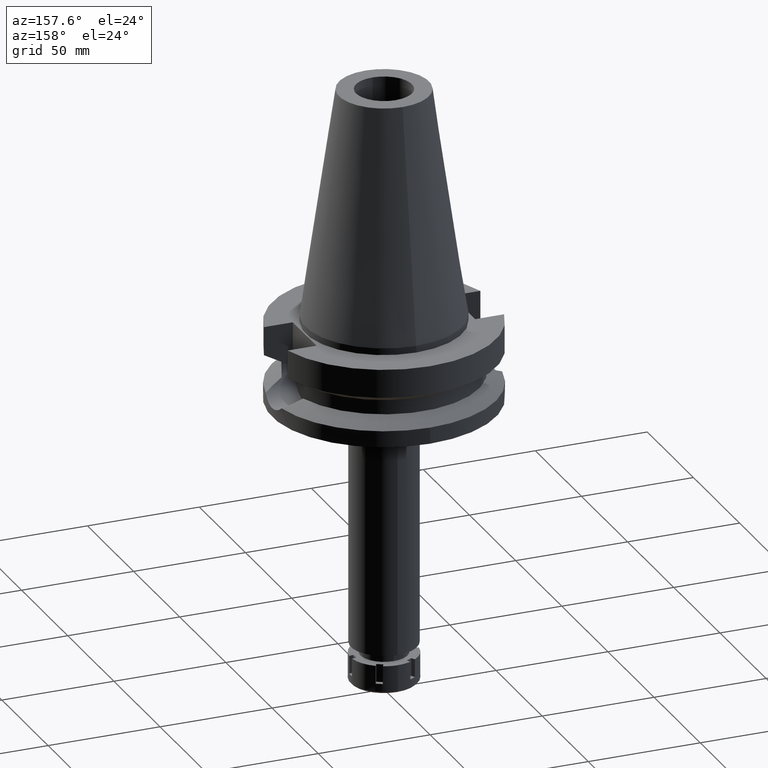
[diagram: clean part render]
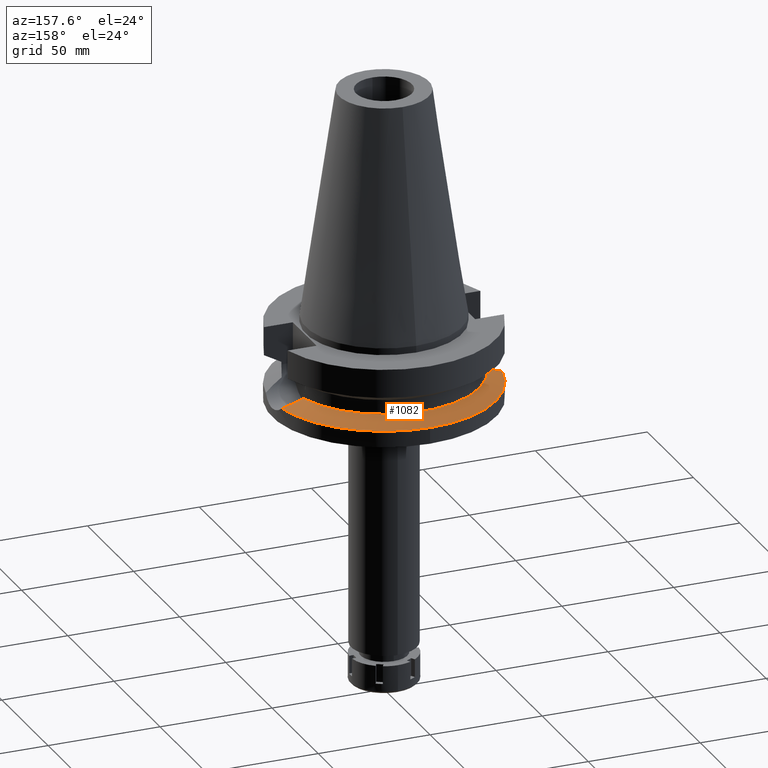
[diagram: same view with one face highlighted and labeled with its STEP entity id]
A machine part, auxiliary view. The second image highlights one B-rep face of the part: STEP entity #1082.
In plain terms, the highlighted conical surface has half-angle 60 deg.
Its self-contained STEP definition (entity closure, byte-faithful):
#51 = CARTESIAN_POINT ( 'NONE',  ( -46.93593280644003585, 9.770477689718383374, -29.54494220286485984 ) ) ;
#103 = CARTESIAN_POINT ( 'NONE',  ( 45.58843685150138469, 10.28591279077460108, -28.85212307119248365 ) ) ;
#117 = ORIENTED_EDGE ( 'NONE', *, *, #970, .F. ) ;
#174 = CARTESIAN_POINT ( 'NONE',  ( -41.73355036729758893, 11.52031717551258438, -26.86454506609836912 ) ) ;
#207 = CARTESIAN_POINT ( 'NONE',  ( -44.92494464716973823, 10.53396995766594912, -28.51065719593379200 ) ) ;
#294 = AXIS2_PLACEMENT_3D ( 'NONE', #701, #1258, #638 ) ;
#351 = AXIS2_PLACEMENT_3D ( 'NONE', #597, #1746, #2619 ) ;
#424 = B_SPLINE_CURVE_WITH_KNOTS ( 'NONE', 3,
 ( #1858, #174, #1877, #1300, #3624, #3027, #207, #2064, #3214, #1059, #775, #51, #3184, #1445 ),
 .UNSPECIFIED., .F., .F.,
 ( 4, 2, 2, 1, 1, 2, 2, 4 ),
 ( 0.0000000000000000000, 0.2499999999999955591, 0.3749999999999924505, 0.4374999999999901745, 0.4687499999999889533, 0.4843749999999892308, 0.4999999999999895084, 1.000000000000000000 ),
 .UNSPECIFIED. ) ;
#476 = FACE_OUTER_BOUND ( 'NONE', #2016, .T. ) ;
#597 = CARTESIAN_POINT ( 'NONE',  ( 0.0000000000000000000, 0.0000000000000000000, -26.40718074535000426 ) ) ;
#638 = DIRECTION ( 'NONE',  ( 0.0000000000000000000, 1.000000000000000000, 0.0000000000000000000 ) ) ;
#683 = B_SPLINE_CURVE_WITH_KNOTS ( 'NONE', 3,
 ( #3282, #3296, #1269, #3237, #1549, #2432, #2448, #1307, #3578, #103, #1250, #2692, #2163, #2404, #2369 ),
 .UNSPECIFIED., .F., .F.,
 ( 4, 2, 2, 1, 1, 1, 2, 2, 4 ),
 ( 0.0000000000000000000, 0.2499999999999645284, 0.3749999999999460432, 0.4374999999999374944, 0.4687499999999341083, 0.4843749999999327205, 0.4921874999999328870, 0.4999999999999330536, 1.000000000000000000 ),
 .UNSPECIFIED. ) ;
#701 = CARTESIAN_POINT ( 'NONE',  ( 0.0000000000000000000, 0.0000000000000000000, -30.73730776426999967 ) ) ;
#773 = EDGE_CURVE ( 'NONE', #1094, #1755, #1949, .T. ) ;
#775 = CARTESIAN_POINT ( 'NONE',  ( -45.48382576156851798, 10.32615369473967704, -28.79812693179675875 ) ) ;
#905 = CARTESIAN_POINT ( 'NONE',  ( 0.0000000000000000000, 0.0000000000000000000, -30.73730776426999967 ) ) ;
#957 = CARTESIAN_POINT ( 'NONE',  ( -49.26250064874000145, 8.556052234130000045, -30.73730776426999967 ) ) ;
#970 = EDGE_CURVE ( 'NONE', #1737, #1160, #3036, .T. ) ;
#1024 = DIRECTION ( 'NONE',  ( 0.0000000000000000000, 0.0000000000000000000, -1.000000000000000000 ) ) ;
#1043 = ORIENTED_EDGE ( 'NONE', *, *, #2976, .F. ) ;
#1059 = CARTESIAN_POINT ( 'NONE',  ( -45.44311735373492667, 10.34162502750873536, -28.77719035429739236 ) ) ;
#1082 = ADVANCED_FACE ( 'NONE', ( #476 ), #2047, .T. ) ;
#1094 = VERTEX_POINT ( 'NONE', #3377 ) ;
#1145 = EDGE_CURVE ( 'NONE', #1755, #1254, #424, .T. ) ;
#1160 = VERTEX_POINT ( 'NONE', #3287 ) ;
#1250 = CARTESIAN_POINT ( 'NONE',  ( 45.54418669695501620, 10.30291458307565478, -28.82936539286048117 ) ) ;
#1254 = VERTEX_POINT ( 'NONE', #957 ) ;
#1258 = DIRECTION ( 'NONE',  ( 0.0000000000000000000, 0.0000000000000000000, -1.000000000000000000 ) ) ;
#1267 = EDGE_CURVE ( 'NONE', #1160, #1094, #683, .T. ) ;
#1269 = CARTESIAN_POINT ( 'NONE',  ( 48.13351788684917665, 9.173312628272432434, -30.15907680262851898 ) ) ;
#1276 = AXIS2_PLACEMENT_3D ( 'NONE', #3327, #1024, #1629 ) ;
#1300 = CARTESIAN_POINT ( 'NONE',  ( -43.73416380861385022, 10.93837383931961327, -27.89752348326785736 ) ) ;
#1307 = CARTESIAN_POINT ( 'NONE',  ( 45.80842374814064044, 10.20048890443323586, -28.96525022612820877 ) ) ;
#1445 = CARTESIAN_POINT ( 'NONE',  ( -49.26250064874000145, 8.556052234130000045, -30.73730776426999967 ) ) ;
#1544 = CARTESIAN_POINT ( 'NONE',  ( 0.0000000000000000000, 50.00000000000000000, -30.73730776426999967 ) ) ;
#1549 = CARTESIAN_POINT ( 'NONE',  ( 46.86885191089640301, 9.761127090607544687, -29.51017906808378655 ) ) ;
#1629 = DIRECTION ( 'NONE',  ( 0.0000000000000000000, -1.000000000000000000, 0.0000000000000000000 ) ) ;
#1737 = VERTEX_POINT ( 'NONE', #1544 ) ;
#1746 = DIRECTION ( 'NONE',  ( 0.0000000000000000000, 0.0000000000000000000, 1.000000000000000000 ) ) ;
#1755 = VERTEX_POINT ( 'NONE', #3547 ) ;
#1788 = DIRECTION ( 'NONE',  ( -0.9852500129747439050, 0.1711210446826074982, 0.0000000000000000000 ) ) ;
#1824 = ORIENTED_EDGE ( 'NONE', *, *, #1267, .F. ) ;
#1858 = CARTESIAN_POINT ( 'NONE',  ( -40.85052569294000335, 11.72538061688000077, -26.40718074535000426 ) ) ;
#1877 = CARTESIAN_POINT ( 'NONE',  ( -42.56483798051073819, 11.29548452375017398, -27.29433975277819968 ) ) ;
#1949 = CIRCLE ( 'NONE', #351, 42.50000000000000000 ) ;
#2016 = EDGE_LOOP ( 'NONE', ( #2384, #1824, #117, #1043, #2188 ) ) ;
#2047 = CONICAL_SURFACE ( 'NONE', #1276, 46.25000000000000000, 1.047197551196400456 ) ;
#2064 = CARTESIAN_POINT ( 'NONE',  ( -45.22921619679243577, 10.42208307057615357, -28.66717461634074837 ) ) ;
#2163 = CARTESIAN_POINT ( 'NONE',  ( 44.15270892197005992, 10.83391924912722715, -28.11369014434513502 ) ) ;
#2188 = ORIENTED_EDGE ( 'NONE', *, *, #1145, .F. ) ;
#2369 = CARTESIAN_POINT ( 'NONE',  ( 40.85052569294000335, 11.72538061688000077, -26.40718074535000426 ) ) ;
#2384 = ORIENTED_EDGE ( 'NONE', *, *, #773, .F. ) ;
#2404 = CARTESIAN_POINT ( 'NONE',  ( 42.60294607567705327, 11.31841876763595955, -27.31485023781787547 ) ) ;
#2432 = CARTESIAN_POINT ( 'NONE',  ( 46.36720459784391579, 9.974209279167146391, -29.25247328213620079 ) ) ;
#2448 = CARTESIAN_POINT ( 'NONE',  ( 46.11246700245048658, 10.07962604479744329, -29.12156619230676924 ) ) ;
#2619 = DIRECTION ( 'NONE',  ( 0.0000000000000000000, 1.000000000000000000, 0.0000000000000000000 ) ) ;
#2692 = CARTESIAN_POINT ( 'NONE',  ( 45.52086275228545986, 10.31184393386916653, -28.81736958768463808 ) ) ;
#2862 = DIRECTION ( 'NONE',  ( 0.0000000000000000000, 0.0000000000000000000, -1.000000000000000000 ) ) ;
#2903 = AXIS2_PLACEMENT_3D ( 'NONE', #905, #2862, #1788 ) ;
#2976 = EDGE_CURVE ( 'NONE', #1254, #1737, #3559, .T. ) ;
#3027 = CARTESIAN_POINT ( 'NONE',  ( -44.65686493755536901, 10.62862835434165021, -28.37270278183864036 ) ) ;
#3036 = CIRCLE ( 'NONE', #294, 50.00000000000000000 ) ;
#3184 = CARTESIAN_POINT ( 'NONE',  ( -48.18082335423584084, 9.176790001358369864, -30.18333944587587325 ) ) ;
#3214 = CARTESIAN_POINT ( 'NONE',  ( -45.35779940843204372, 10.37384485205312856, -28.73330956085881738 ) ) ;
#3237 = CARTESIAN_POINT ( 'NONE',  ( 47.19284628261894454, 9.616075251738395835, -29.67650304086174984 ) ) ;
#3282 = CARTESIAN_POINT ( 'NONE',  ( 49.26250064874000145, 8.556052234130000045, -30.73730776426999967 ) ) ;
#3287 = CARTESIAN_POINT ( 'NONE',  ( 49.26250064874000145, 8.556052234130000045, -30.73730776426999967 ) ) ;
#3296 = CARTESIAN_POINT ( 'NONE',  ( 48.71888360841949606, 8.868015542919536642, -30.45890068370467318 ) ) ;
#3327 = CARTESIAN_POINT ( 'NONE',  ( 0.0000000000000000000, 0.0000000000000000000, -28.57224425480999841 ) ) ;
#3377 = CARTESIAN_POINT ( 'NONE',  ( 40.85052569294000335, 11.72538061688000077, -26.40718074535000426 ) ) ;
#3547 = CARTESIAN_POINT ( 'NONE',  ( -40.85052569294000335, 11.72538061688000077, -26.40718074535000426 ) ) ;
#3559 = CIRCLE ( 'NONE', #2903, 50.00000000000000000 ) ;
#3578 = CARTESIAN_POINT ( 'NONE',  ( 45.65468977273130946, 10.26036970740178944, -28.88619561542544645 ) ) ;
#3624 = CARTESIAN_POINT ( 'NONE',  ( -44.11100481936213669, 10.81601670756742983, -28.09168475657030939 ) ) ;